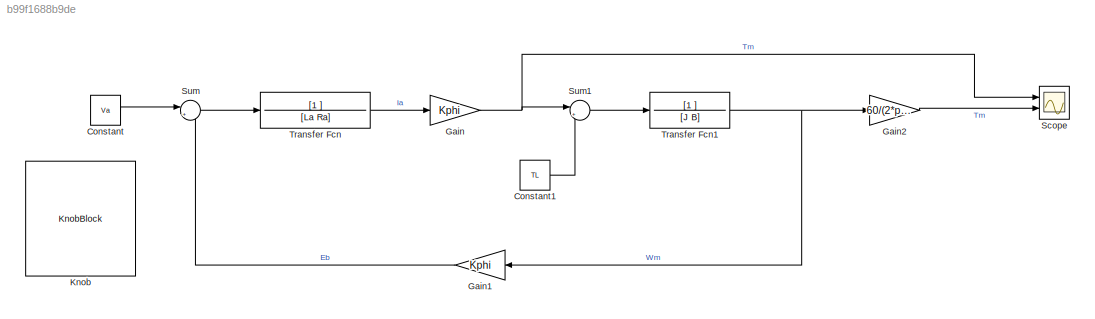
MODEL slx_b99f1688b9de
KIND model
CONFIG AbsTol = auto
CONFIG EnableMultiTasking = off
CONFIG FixedStep = auto
CONFIG MaxStep = 1e-3
CONFIG MinStep = auto
CONFIG RelTol = 1e-3
CONFIG SampleTimeConstraint = Unconstrained
CONFIG SolverName = VariableStepAuto
CONFIG StartTime = 0.0
CONFIG StopTime = inf
BLOCK [Constant] Constant
  Value = Va
BLOCK [Constant] Constant1
  Value = TL
BLOCK [Gain] Gain
  Gain = Kphi
BLOCK [Gain] Gain1
  Gain = Kphi
  NameLocation = top
BLOCK [Gain] Gain2
  Gain = 60/(2*pi)
BLOCK [KnobBlock] Knob
BLOCK [Scope] Scope
  Floating = off
  NumInputPorts = 2
  Ports = [2]
  ScopeSpecificationString = Simulink.scopes.TimeScopeBlockCfg('CurrentConfiguration', extmgr.ConfigurationSet(extmgr.Configuration('Core','General UI',true,'FigureColor',[1 1 1]),extmgr.Configuration('Core','Source UI',true),extmgr.Configuration('Sources','WiredSimulink',true),extmgr.Configuration('Visuals','Time Domain',true,'SerializedDisplays',{struct('MinYLimReal','10.39284','MaxYLimReal','30.39284','YLabelReal','','MinY...<+2207ch>
BLOCK [Sum] Sum
  Inputs = |+-
  Ports = [2, 1]
BLOCK [Sum] Sum1
  Inputs = |+-
  Ports = [2, 1]
BLOCK [TransferFcn] Transfer Fcn
  Denominator = [La Ra]
  Numerator = [1 ]
BLOCK [TransferFcn] Transfer Fcn1
  Denominator = [J B]
  Numerator = [1 ]
LINE Constant1:1 -> Sum1:2
LINE Constant:1 -> Sum:1
LINE Gain1:1 -> Sum:2
LINE Gain2:1 -> Scope:2
NET Gain:1 -> Scope:1, Sum1:1
LINE Sum1:1 -> Transfer Fcn1:1
LINE Sum:1 -> Transfer Fcn:1
NET Transfer Fcn1:1 -> Gain1:1, Gain2:1
LINE Transfer Fcn:1 -> Gain:1
note: NET lines group one-source signal fan-out (src -> all destinations, sorted); 1:1 wires keep LINE
